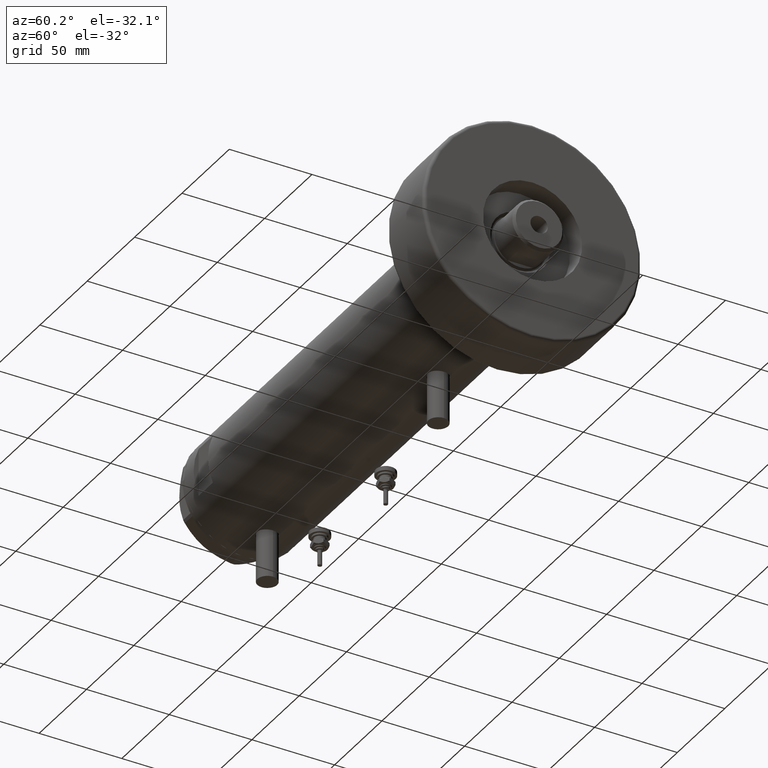
[diagram: clean part render]
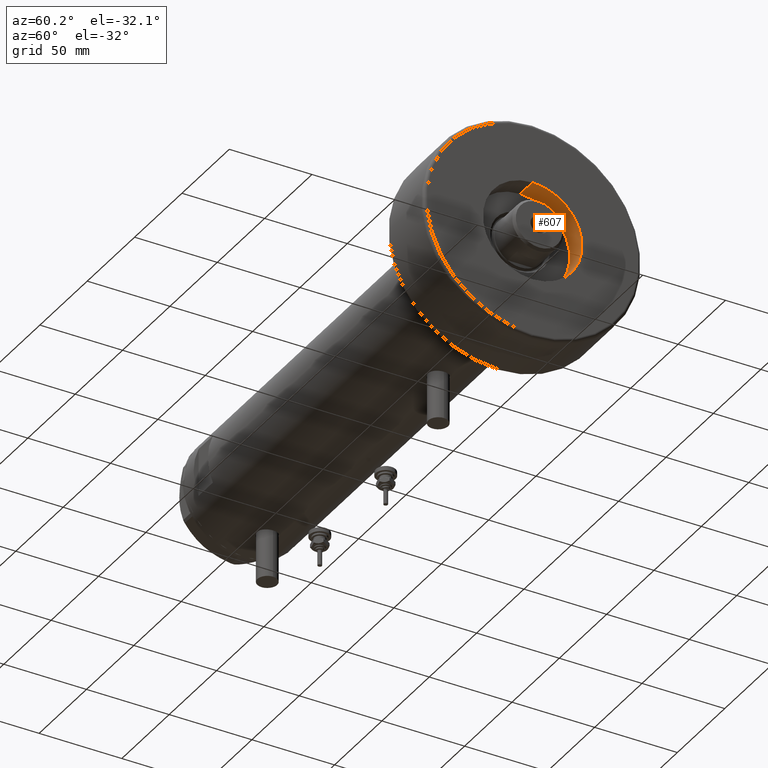
[diagram: same view with one face highlighted and labeled with its STEP entity id]
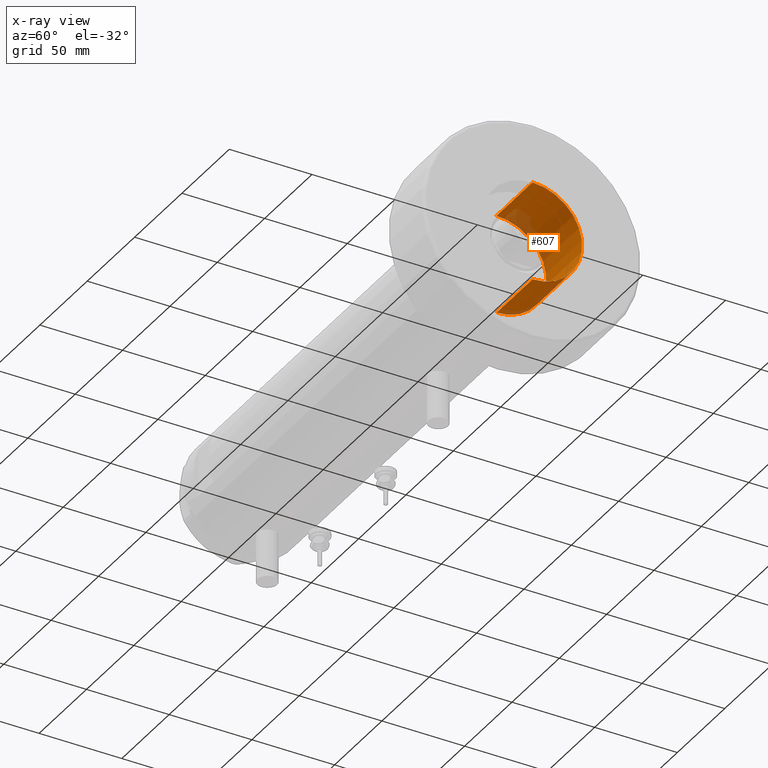
[diagram: x-ray of the same camera — body ghosted, the highlighted face saturated]
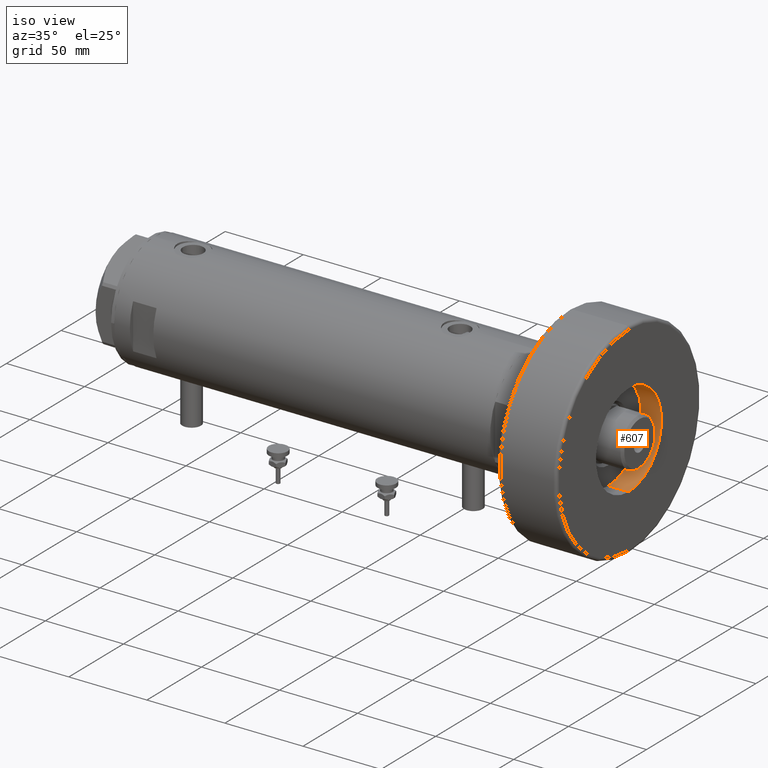
[diagram: same view with one face highlighted and labeled with its STEP entity id]
A machine part, auxiliary view. The second image highlights one B-rep face of the part: STEP entity #607.
The next image is the same camera in x-ray: the body ghosted, the highlighted face saturated — about 17% of this face is hidden behind the body in this view.
A second angle (iso view) of the same face is appended — the face is thin or edge-on in the first view.
In plain terms, the highlighted cylindrical surface (partial cylindrical patch) has radius 30 mm, axis along (1, 0, -0).
Its self-contained STEP definition (entity closure, byte-faithful):
#66 = CIRCLE ( 'NONE', #5477, 30.00000000000000000 ) ;
#170 = CARTESIAN_POINT ( 'NONE',  ( 30.00000000000000000, 0.000000000000000000, 38.00000000000000000 ) ) ;
#607 = ADVANCED_FACE ( 'NONE', ( #3967 ), #6290, .F. ) ;
#1358 = AXIS2_PLACEMENT_3D ( 'NONE', #5158, #5676, #1712 ) ;
#1512 = DIRECTION ( 'NONE',  ( 1.000000000000000000, 0.000000000000000000, 0.000000000000000000 ) ) ;
#1644 = CARTESIAN_POINT ( 'NONE',  ( 0.000000000000000000, 0.000000000000000000, 0.000000000000000000 ) ) ;
#1660 = ORIENTED_EDGE ( 'NONE', *, *, #4552, .T. ) ;
#1712 = DIRECTION ( 'NONE',  ( 1.000000000000000000, 0.000000000000000000, 0.000000000000000000 ) ) ;
#1869 = CARTESIAN_POINT ( 'NONE',  ( 0.000000000000000000, 0.000000000000000000, 0.000000000000000000 ) ) ;
#1957 = CARTESIAN_POINT ( 'NONE',  ( 30.00000000000000000, 0.000000000000000000, 0.000000000000000000 ) ) ;
#2045 = EDGE_LOOP ( 'NONE', ( #5584, #5286, #3508, #1660 ) ) ;
#2266 = EDGE_CURVE ( 'NONE', #2397, #6052, #4399, .T. ) ;
#2268 = AXIS2_PLACEMENT_3D ( 'NONE', #1869, #5916, #1512 ) ;
#2397 = VERTEX_POINT ( 'NONE', #1957 ) ;
#2572 = DIRECTION ( 'NONE',  ( 0.000000000000000000, 0.000000000000000000, 1.000000000000000000 ) ) ;
#3033 = VERTEX_POINT ( 'NONE', #3556 ) ;
#3039 = DIRECTION ( 'NONE',  ( -0.000000000000000000, -0.000000000000000000, 1.000000000000000000 ) ) ;
#3274 = CARTESIAN_POINT ( 'NONE',  ( -30.00000000000000000, 3.673940397442059178E-15, 0.000000000000000000 ) ) ;
#3476 = CARTESIAN_POINT ( 'NONE',  ( -30.00000000000000000, 3.673940397442059178E-15, 0.000000000000000000 ) ) ;
#3508 = ORIENTED_EDGE ( 'NONE', *, *, #2266, .T. ) ;
#3556 = CARTESIAN_POINT ( 'NONE',  ( -30.00000000000000000, 3.673940397442059178E-15, 38.00000000000000000 ) ) ;
#3635 = VERTEX_POINT ( 'NONE', #3274 ) ;
#3733 = VECTOR ( 'NONE', #3039, 1000.000000000000000 ) ;
#3818 = CARTESIAN_POINT ( 'NONE',  ( 30.00000000000000000, 0.000000000000000000, 0.000000000000000000 ) ) ;
#3967 = FACE_OUTER_BOUND ( 'NONE', #2045, .T. ) ;
#4399 = LINE ( 'NONE', #3818, #5649 ) ;
#4450 = EDGE_CURVE ( 'NONE', #3635, #3033, #5365, .T. ) ;
#4552 = EDGE_CURVE ( 'NONE', #6052, #3033, #6089, .T. ) ;
#4887 = EDGE_CURVE ( 'NONE', #2397, #3635, #66, .T. ) ;
#4975 = DIRECTION ( 'NONE',  ( 1.000000000000000000, 0.000000000000000000, 0.000000000000000000 ) ) ;
#5158 = CARTESIAN_POINT ( 'NONE',  ( 0.000000000000000000, 0.000000000000000000, 38.00000000000000000 ) ) ;
#5286 = ORIENTED_EDGE ( 'NONE', *, *, #4887, .F. ) ;
#5365 = LINE ( 'NONE', #3476, #3733 ) ;
#5477 = AXIS2_PLACEMENT_3D ( 'NONE', #1644, #2572, #4975 ) ;
#5584 = ORIENTED_EDGE ( 'NONE', *, *, #4450, .F. ) ;
#5649 = VECTOR ( 'NONE', #5775, 1000.000000000000000 ) ;
#5676 = DIRECTION ( 'NONE',  ( 0.000000000000000000, 0.000000000000000000, 1.000000000000000000 ) ) ;
#5775 = DIRECTION ( 'NONE',  ( -0.000000000000000000, -0.000000000000000000, 1.000000000000000000 ) ) ;
#5916 = DIRECTION ( 'NONE',  ( -0.000000000000000000, -0.000000000000000000, 1.000000000000000000 ) ) ;
#6052 = VERTEX_POINT ( 'NONE', #170 ) ;
#6089 = CIRCLE ( 'NONE', #1358, 30.00000000000000000 ) ;
#6290 = CYLINDRICAL_SURFACE ( 'NONE', #2268, 30.00000000000000000 ) ;